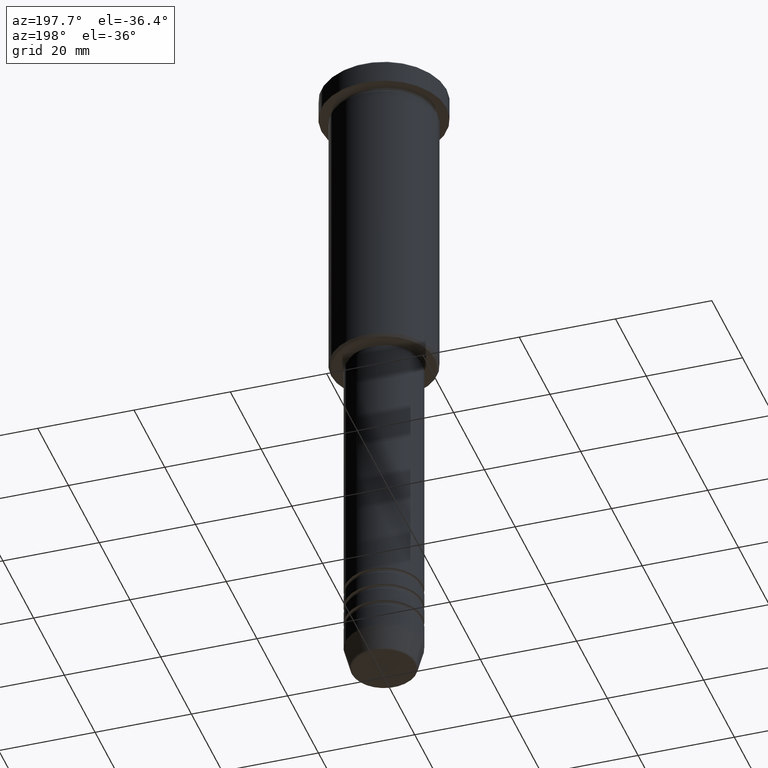
[diagram: clean part render]
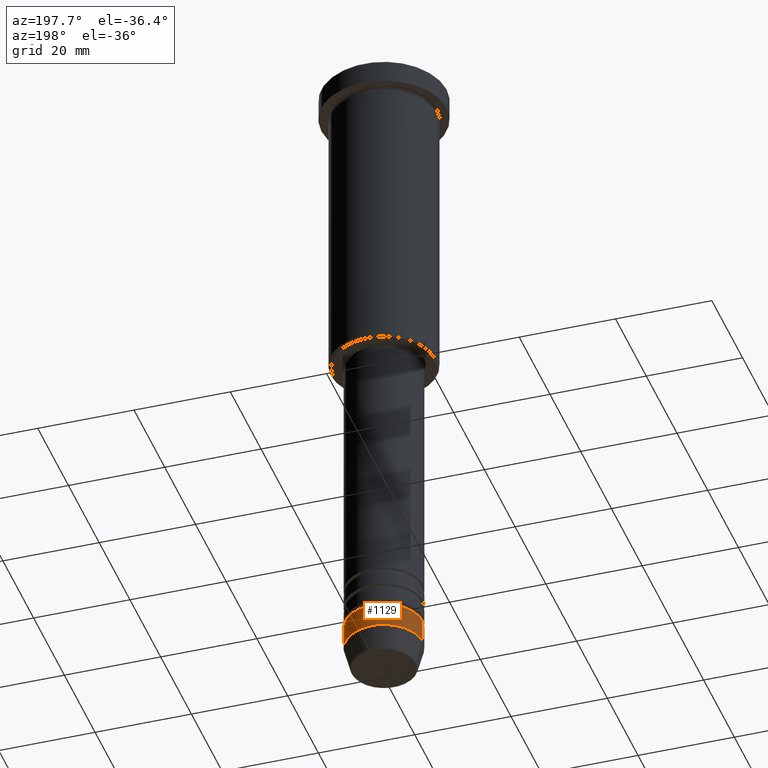
[diagram: same view with one face highlighted and labeled with its STEP entity id]
A machine part, auxiliary view. The second image highlights one B-rep face of the part: STEP entity #1129.
In plain terms, the highlighted cylindrical surface (partial cylindrical patch) has radius 8 mm, axis along (-0, -0, 1).
Its self-contained STEP definition (entity closure, byte-faithful):
#2 = CARTESIAN_POINT ( 'NONE',  ( 8.000000000000000000, 0.000000000000000000, -135.0000000000000000 ) ) ;
#17 = LINE ( 'NONE', #94, #845 ) ;
#82 = EDGE_CURVE ( 'NONE', #947, #700, #17, .T. ) ;
#88 = ORIENTED_EDGE ( 'NONE', *, *, #766, .F. ) ;
#94 = CARTESIAN_POINT ( 'NONE',  ( -8.000000000000000000, 9.797174393178825657E-16, 0.000000000000000000 ) ) ;
#101 = ORIENTED_EDGE ( 'NONE', *, *, #82, .T. ) ;
#120 = AXIS2_PLACEMENT_3D ( 'NONE', #1048, #1042, #129 ) ;
#129 = DIRECTION ( 'NONE',  ( 1.000000000000000000, 0.000000000000000000, 0.000000000000000000 ) ) ;
#193 = CARTESIAN_POINT ( 'NONE',  ( -8.000000000000000000, 9.797174393178825657E-16, -130.0000000000000000 ) ) ;
#217 = DIRECTION ( 'NONE',  ( -0.000000000000000000, -0.000000000000000000, 1.000000000000000000 ) ) ;
#269 = VERTEX_POINT ( 'NONE', #531 ) ;
#276 = DIRECTION ( 'NONE',  ( -0.000000000000000000, -0.000000000000000000, 1.000000000000000000 ) ) ;
#284 = CYLINDRICAL_SURFACE ( 'NONE', #458, 8.000000000000000000 ) ;
#301 = DIRECTION ( 'NONE',  ( 1.000000000000000000, 0.000000000000000000, 0.000000000000000000 ) ) ;
#332 = CIRCLE ( 'NONE', #1170, 8.000000000000000000 ) ;
#357 = EDGE_CURVE ( 'NONE', #563, #269, #952, .T. ) ;
#391 = ORIENTED_EDGE ( 'NONE', *, *, #416, .T. ) ;
#416 = EDGE_CURVE ( 'NONE', #563, #947, #601, .T. ) ;
#458 = AXIS2_PLACEMENT_3D ( 'NONE', #691, #1044, #301 ) ;
#480 = CARTESIAN_POINT ( 'NONE',  ( 0.000000000000000000, 0.000000000000000000, -130.0000000000000000 ) ) ;
#531 = CARTESIAN_POINT ( 'NONE',  ( 8.000000000000000000, 0.000000000000000000, -130.0000000000000000 ) ) ;
#563 = VERTEX_POINT ( 'NONE', #2 ) ;
#586 = CARTESIAN_POINT ( 'NONE',  ( -8.000000000000000000, 9.797174393178825657E-16, -135.0000000000000000 ) ) ;
#601 = CIRCLE ( 'NONE', #120, 8.000000000000000000 ) ;
#648 = DIRECTION ( 'NONE',  ( 1.000000000000000000, 0.000000000000000000, 0.000000000000000000 ) ) ;
#664 = FACE_OUTER_BOUND ( 'NONE', #1098, .T. ) ;
#691 = CARTESIAN_POINT ( 'NONE',  ( 0.000000000000000000, 0.000000000000000000, 0.000000000000000000 ) ) ;
#700 = VERTEX_POINT ( 'NONE', #193 ) ;
#766 = EDGE_CURVE ( 'NONE', #269, #700, #332, .T. ) ;
#845 = VECTOR ( 'NONE', #940, 1000.000000000000000 ) ;
#940 = DIRECTION ( 'NONE',  ( -0.000000000000000000, -0.000000000000000000, 1.000000000000000000 ) ) ;
#947 = VERTEX_POINT ( 'NONE', #586 ) ;
#952 = LINE ( 'NONE', #1034, #1151 ) ;
#1034 = CARTESIAN_POINT ( 'NONE',  ( 8.000000000000000000, 0.000000000000000000, 0.000000000000000000 ) ) ;
#1042 = DIRECTION ( 'NONE',  ( -0.000000000000000000, -0.000000000000000000, 1.000000000000000000 ) ) ;
#1043 = ORIENTED_EDGE ( 'NONE', *, *, #357, .F. ) ;
#1044 = DIRECTION ( 'NONE',  ( -0.000000000000000000, -0.000000000000000000, 1.000000000000000000 ) ) ;
#1048 = CARTESIAN_POINT ( 'NONE',  ( 0.000000000000000000, 0.000000000000000000, -135.0000000000000000 ) ) ;
#1098 = EDGE_LOOP ( 'NONE', ( #391, #101, #88, #1043 ) ) ;
#1129 = ADVANCED_FACE ( 'NONE', ( #664 ), #284, .T. ) ;
#1151 = VECTOR ( 'NONE', #217, 1000.000000000000000 ) ;
#1170 = AXIS2_PLACEMENT_3D ( 'NONE', #480, #276, #648 ) ;